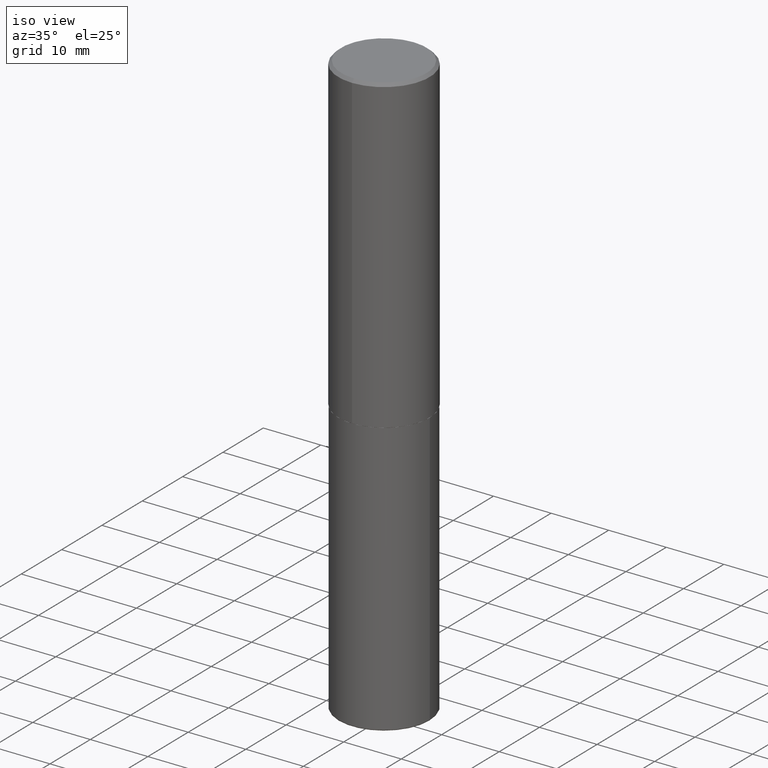
[diagram: clean part render]
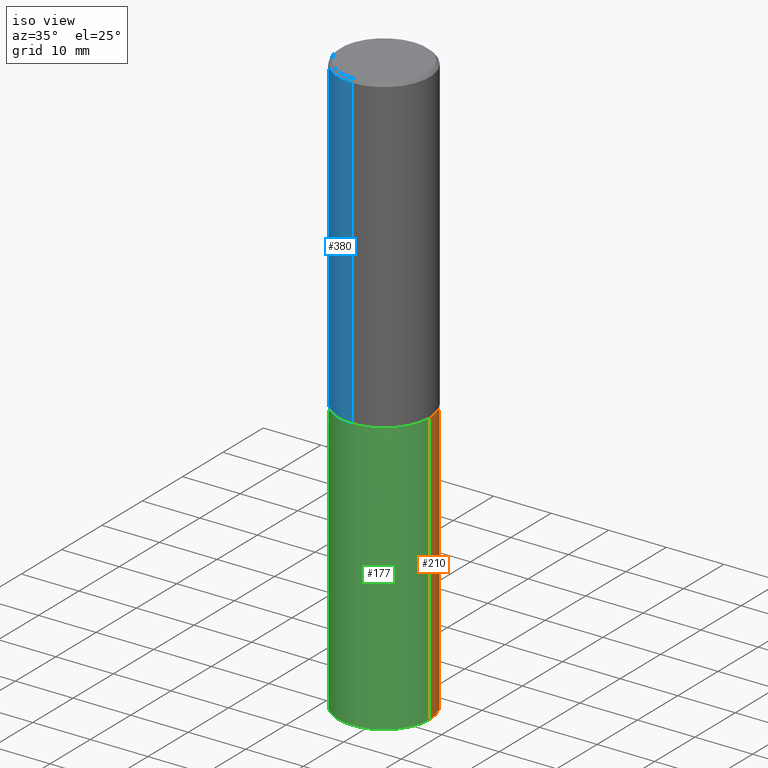
[diagram: same view with three faces highlighted in distinct colors, each labeled with its STEP entity id]
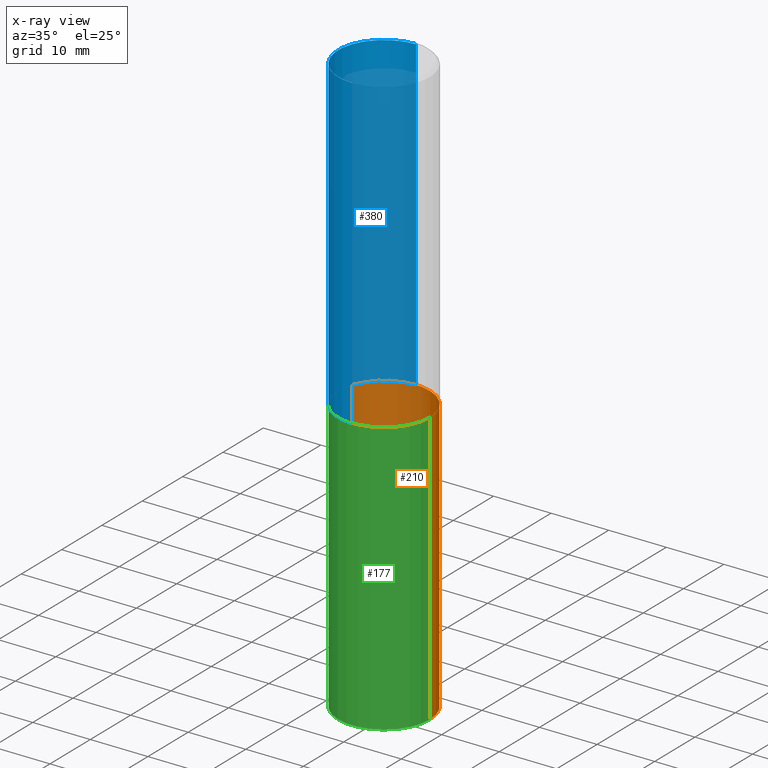
[diagram: x-ray of the same camera — body ghosted, the three highlighted faces saturated]
A machine part, iso view with three faces highlighted in distinct colors.
The next image is the same camera in x-ray (body ghosted, the three faces saturated) — at least one of them is partly hidden behind the body in this view.
Their STEP definitions:

[orange] entity #210 — the highlighted cylindrical surface (partial cylindrical patch) has radius 7.9375 mm, axis along (-0, 0, 1).
#17 = AXIS2_PLACEMENT_3D ( 'NONE', #95, #33, #156 ) ;
#24 = AXIS2_PLACEMENT_3D ( 'NONE', #193, #256, #354 ) ;
#28 = VERTEX_POINT ( 'NONE', #228 ) ;
#30 = CYLINDRICAL_SURFACE ( 'NONE', #170, 0.3125000000000000000 ) ;
#32 = ORIENTED_EDGE ( 'NONE', *, *, #255, .F. ) ;
#33 = DIRECTION ( 'NONE',  ( -2.445468806185136597E-29, 3.491481338843145583E-15, 1.000000000000000000 ) ) ;
#43 = CIRCLE ( 'NONE', #24, 0.3125000000000000000 ) ;
#95 = CARTESIAN_POINT ( 'NONE',  ( 9.757420536678694842E-29, -1.393101054198414910E-14, -3.989999999999999769 ) ) ;
#98 = VECTOR ( 'NONE', #263, 39.37007874015748143 ) ;
#99 = LINE ( 'NONE', #379, #116 ) ;
#116 = VECTOR ( 'NONE', #321, 39.37007874015748143 ) ;
#132 = CARTESIAN_POINT ( 'NONE',  ( -0.3125000000000000000, 2.220446049250313081E-15, -1.537167215704658232E-29 ) ) ;
#151 = FACE_OUTER_BOUND ( 'NONE', #310, .T. ) ;
#155 = CARTESIAN_POINT ( 'NONE',  ( 0.000000000000000000, 0.000000000000000000, 0.000000000000000000 ) ) ;
#156 = DIRECTION ( 'NONE',  ( 1.000000000000000000, -6.982962677686268288E-15, 0.000000000000000000 ) ) ;
#170 = AXIS2_PLACEMENT_3D ( 'NONE', #155, #315, #175 ) ;
#175 = DIRECTION ( 'NONE',  ( 1.000000000000000000, -6.982962677686266711E-15, 4.876176775795936353E-29 ) ) ;
#193 = CARTESIAN_POINT ( 'NONE',  ( 5.196621213143414147E-29, -7.419397845041682046E-15, -2.124999999999999556 ) ) ;
#210 = ADVANCED_FACE ( 'NONE', ( #151 ), #30, .T. ) ;
#220 = LINE ( 'NONE', #132, #98 ) ;
#223 = CIRCLE ( 'NONE', #17, 0.3125000000000000555 ) ;
#224 = EDGE_CURVE ( 'NONE', #257, #320, #220, .T. ) ;
#228 = CARTESIAN_POINT ( 'NONE',  ( 0.3125000000000000000, -1.611318637876110745E-14, -3.989999999999999769 ) ) ;
#230 = EDGE_CURVE ( 'NONE', #28, #257, #223, .T. ) ;
#252 = CARTESIAN_POINT ( 'NONE',  ( -0.3125000000000000000, -8.454758144262601705E-15, -2.124999999999999556 ) ) ;
#255 = EDGE_CURVE ( 'NONE', #353, #320, #43, .T. ) ;
#256 = DIRECTION ( 'NONE',  ( -2.445468806185136597E-29, 3.491481338843145583E-15, 1.000000000000000000 ) ) ;
#257 = VERTEX_POINT ( 'NONE', #384 ) ;
#263 = DIRECTION ( 'NONE',  ( -2.445468806185136877E-29, 3.491481338843145188E-15, 1.000000000000000000 ) ) ;
#264 = EDGE_CURVE ( 'NONE', #28, #353, #99, .T. ) ;
#269 = ORIENTED_EDGE ( 'NONE', *, *, #264, .F. ) ;
#285 = CARTESIAN_POINT ( 'NONE',  ( 0.3125000000000000000, -9.601573681818640393E-15, -2.124999999999999556 ) ) ;
#310 = EDGE_LOOP ( 'NONE', ( #378, #383, #32, #269 ) ) ;
#315 = DIRECTION ( 'NONE',  ( -2.445468806185136597E-29, 3.491481338843145583E-15, 1.000000000000000000 ) ) ;
#320 = VERTEX_POINT ( 'NONE', #252 ) ;
#321 = DIRECTION ( 'NONE',  ( -2.445468806185136877E-29, 3.491481338843145188E-15, 1.000000000000000000 ) ) ;
#353 = VERTEX_POINT ( 'NONE', #285 ) ;
#354 = DIRECTION ( 'NONE',  ( 1.000000000000000000, -6.982962677686265133E-15, 0.000000000000000000 ) ) ;
#378 = ORIENTED_EDGE ( 'NONE', *, *, #230, .T. ) ;
#379 = CARTESIAN_POINT ( 'NONE',  ( 0.3125000000000000000, -2.182175836776958347E-15, 1.523805242436230075E-29 ) ) ;
#383 = ORIENTED_EDGE ( 'NONE', *, *, #224, .T. ) ;
#384 = CARTESIAN_POINT ( 'NONE',  ( -0.3125000000000000000, -1.171056449273383602E-14, -3.989999999999999769 ) ) ;

[blue] entity #380 — the highlighted cylindrical surface (partial cylindrical patch) has radius 7.9375 mm, axis along (-0, 0, 1).
#18 = EDGE_CURVE ( 'NONE', #126, #54, #385, .T. ) ;
#26 = EDGE_CURVE ( 'NONE', #126, #359, #203, .T. ) ;
#31 = ORIENTED_EDGE ( 'NONE', *, *, #185, .F. ) ;
#46 = VECTOR ( 'NONE', #189, 39.37007874015748143 ) ;
#54 = VERTEX_POINT ( 'NONE', #133 ) ;
#56 = CARTESIAN_POINT ( 'NONE',  ( 4.889704863452922148E-31, -6.984728044299695791E-17, -0.02000000000000006981 ) ) ;
#64 = CARTESIAN_POINT ( 'NONE',  ( -2.182175836776959136E-15, -0.3125000000000001665, 1.091363756921824478E-15 ) ) ;
#69 = CARTESIAN_POINT ( 'NONE',  ( 0.000000000000000000, 0.000000000000000000, 0.000000000000000000 ) ) ;
#120 = CIRCLE ( 'NONE', #232, 0.3125000000000000000 ) ;
#121 = AXIS2_PLACEMENT_3D ( 'NONE', #69, #317, #414 ) ;
#126 = VERTEX_POINT ( 'NONE', #372 ) ;
#133 = CARTESIAN_POINT ( 'NONE',  ( -2.182175836776908254E-15, -0.3125000000000077161, -2.123999999999998334 ) ) ;
#149 = AXIS2_PLACEMENT_3D ( 'NONE', #165, #355, #395 ) ;
#160 = VERTEX_POINT ( 'NONE', #246 ) ;
#165 = CARTESIAN_POINT ( 'NONE',  ( 5.192866564986985411E-29, -7.417781183046251262E-15, -2.123999999999999666 ) ) ;
#185 = EDGE_CURVE ( 'NONE', #359, #160, #120, .T. ) ;
#189 = DIRECTION ( 'NONE',  ( -2.444852431726452614E-29, 3.492364022149836358E-15, 1.000000000000000000 ) ) ;
#203 = LINE ( 'NONE', #397, #418 ) ;
#219 = ORIENTED_EDGE ( 'NONE', *, *, #242, .T. ) ;
#227 = CARTESIAN_POINT ( 'NONE',  ( 2.182175836776958741E-15, 0.3124999999999999445, -0.02000000000000116268 ) ) ;
#229 = LINE ( 'NONE', #64, #46 ) ;
#232 = AXIS2_PLACEMENT_3D ( 'NONE', #56, #336, #342 ) ;
#242 = EDGE_CURVE ( 'NONE', #54, #160, #229, .T. ) ;
#246 = CARTESIAN_POINT ( 'NONE',  ( -2.143905624303602824E-15, -0.3125000000000000555, -0.01999999999999897693 ) ) ;
#247 = EDGE_LOOP ( 'NONE', ( #392, #265, #219, #31 ) ) ;
#265 = ORIENTED_EDGE ( 'NONE', *, *, #18, .T. ) ;
#317 = DIRECTION ( 'NONE',  ( -2.444852431726452894E-29, 3.492364022149836358E-15, 1.000000000000000000 ) ) ;
#326 = FACE_OUTER_BOUND ( 'NONE', #247, .T. ) ;
#336 = DIRECTION ( 'NONE',  ( -2.444852431726452894E-29, 3.492364022149836358E-15, 1.000000000000000000 ) ) ;
#342 = DIRECTION ( 'NONE',  ( -6.982962677686265133E-15, -1.000000000000000000, 3.496765431890256920E-15 ) ) ;
#355 = DIRECTION ( 'NONE',  ( -2.444852431726452894E-29, 3.492364022149836358E-15, 1.000000000000000000 ) ) ;
#358 = CYLINDRICAL_SURFACE ( 'NONE', #121, 0.3125000000000001665 ) ;
#359 = VERTEX_POINT ( 'NONE', #227 ) ;
#363 = DIRECTION ( 'NONE',  ( -2.444852431726452614E-29, 3.492364022149836358E-15, 1.000000000000000000 ) ) ;
#372 = CARTESIAN_POINT ( 'NONE',  ( 2.220446049250340297E-15, 0.3124999999999928391, -2.124000000000000554 ) ) ;
#380 = ADVANCED_FACE ( 'NONE', ( #326 ), #358, .T. ) ;
#385 = CIRCLE ( 'NONE', #149, 0.3125000000000002776 ) ;
#392 = ORIENTED_EDGE ( 'NONE', *, *, #26, .F. ) ;
#395 = DIRECTION ( 'NONE',  ( -6.982962677686265922E-15, -1.000000000000000000, 3.496765431890253764E-15 ) ) ;
#397 = CARTESIAN_POINT ( 'NONE',  ( 2.220446049250313475E-15, 0.3125000000000001665, -1.091363756921824478E-15 ) ) ;
#414 = DIRECTION ( 'NONE',  ( -6.982962677686265133E-15, -1.000000000000000000, 3.492364022149836358E-15 ) ) ;
#418 = VECTOR ( 'NONE', #363, 39.37007874015748143 ) ;

[green] entity #177 — the highlighted cylindrical surface (partial cylindrical patch) has radius 7.9375 mm, axis along (-0, 0, 1).
#28 = VERTEX_POINT ( 'NONE', #228 ) ;
#35 = DIRECTION ( 'NONE',  ( 1.000000000000000000, -6.982962677686268288E-15, 0.000000000000000000 ) ) ;
#89 = DIRECTION ( 'NONE',  ( 1.000000000000000000, -6.982962677686265133E-15, 0.000000000000000000 ) ) ;
#90 = DIRECTION ( 'NONE',  ( 1.000000000000000000, -6.982962677686266711E-15, 4.876176775795936353E-29 ) ) ;
#92 = CIRCLE ( 'NONE', #296, 0.3125000000000000000 ) ;
#98 = VECTOR ( 'NONE', #263, 39.37007874015748143 ) ;
#99 = LINE ( 'NONE', #379, #116 ) ;
#113 = ORIENTED_EDGE ( 'NONE', *, *, #224, .F. ) ;
#116 = VECTOR ( 'NONE', #321, 39.37007874015748143 ) ;
#125 = DIRECTION ( 'NONE',  ( -2.445468806185136597E-29, 3.491481338843145583E-15, 1.000000000000000000 ) ) ;
#131 = CIRCLE ( 'NONE', #181, 0.3125000000000000555 ) ;
#132 = CARTESIAN_POINT ( 'NONE',  ( -0.3125000000000000000, 2.220446049250313081E-15, -1.537167215704658232E-29 ) ) ;
#157 = EDGE_CURVE ( 'NONE', #320, #353, #92, .T. ) ;
#166 = ORIENTED_EDGE ( 'NONE', *, *, #264, .T. ) ;
#177 = ADVANCED_FACE ( 'NONE', ( #215 ), #373, .T. ) ;
#181 = AXIS2_PLACEMENT_3D ( 'NONE', #382, #125, #35 ) ;
#184 = CARTESIAN_POINT ( 'NONE',  ( 0.000000000000000000, 0.000000000000000000, 0.000000000000000000 ) ) ;
#215 = FACE_OUTER_BOUND ( 'NONE', #329, .T. ) ;
#217 = AXIS2_PLACEMENT_3D ( 'NONE', #184, #409, #90 ) ;
#220 = LINE ( 'NONE', #132, #98 ) ;
#221 = ORIENTED_EDGE ( 'NONE', *, *, #157, .F. ) ;
#224 = EDGE_CURVE ( 'NONE', #257, #320, #220, .T. ) ;
#228 = CARTESIAN_POINT ( 'NONE',  ( 0.3125000000000000000, -1.611318637876110745E-14, -3.989999999999999769 ) ) ;
#243 = CARTESIAN_POINT ( 'NONE',  ( 5.196621213143414147E-29, -7.419397845041682046E-15, -2.124999999999999556 ) ) ;
#252 = CARTESIAN_POINT ( 'NONE',  ( -0.3125000000000000000, -8.454758144262601705E-15, -2.124999999999999556 ) ) ;
#257 = VERTEX_POINT ( 'NONE', #384 ) ;
#263 = DIRECTION ( 'NONE',  ( -2.445468806185136877E-29, 3.491481338843145188E-15, 1.000000000000000000 ) ) ;
#264 = EDGE_CURVE ( 'NONE', #28, #353, #99, .T. ) ;
#285 = CARTESIAN_POINT ( 'NONE',  ( 0.3125000000000000000, -9.601573681818640393E-15, -2.124999999999999556 ) ) ;
#286 = EDGE_CURVE ( 'NONE', #257, #28, #131, .T. ) ;
#296 = AXIS2_PLACEMENT_3D ( 'NONE', #243, #374, #89 ) ;
#320 = VERTEX_POINT ( 'NONE', #252 ) ;
#321 = DIRECTION ( 'NONE',  ( -2.445468806185136877E-29, 3.491481338843145188E-15, 1.000000000000000000 ) ) ;
#329 = EDGE_LOOP ( 'NONE', ( #113, #415, #166, #221 ) ) ;
#353 = VERTEX_POINT ( 'NONE', #285 ) ;
#373 = CYLINDRICAL_SURFACE ( 'NONE', #217, 0.3125000000000000000 ) ;
#374 = DIRECTION ( 'NONE',  ( -2.445468806185136597E-29, 3.491481338843145583E-15, 1.000000000000000000 ) ) ;
#379 = CARTESIAN_POINT ( 'NONE',  ( 0.3125000000000000000, -2.182175836776958347E-15, 1.523805242436230075E-29 ) ) ;
#382 = CARTESIAN_POINT ( 'NONE',  ( 9.757420536678694842E-29, -1.393101054198414910E-14, -3.989999999999999769 ) ) ;
#384 = CARTESIAN_POINT ( 'NONE',  ( -0.3125000000000000000, -1.171056449273383602E-14, -3.989999999999999769 ) ) ;
#409 = DIRECTION ( 'NONE',  ( -2.445468806185136597E-29, 3.491481338843145583E-15, 1.000000000000000000 ) ) ;
#415 = ORIENTED_EDGE ( 'NONE', *, *, #286, .T. ) ;